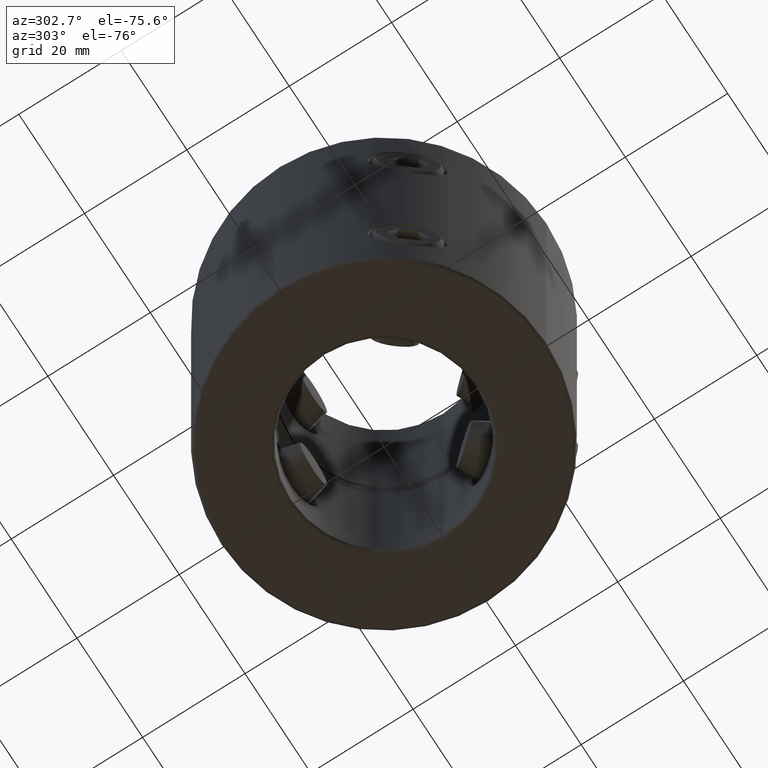
[diagram: clean part render]
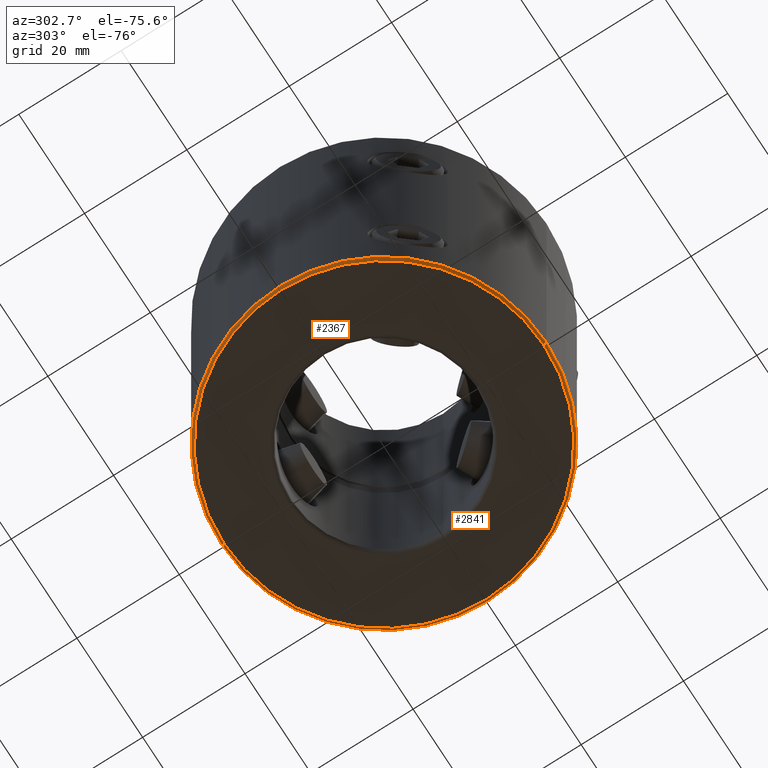
[diagram: same view with one multi-face feature highlighted, each face labeled with its STEP entity id]
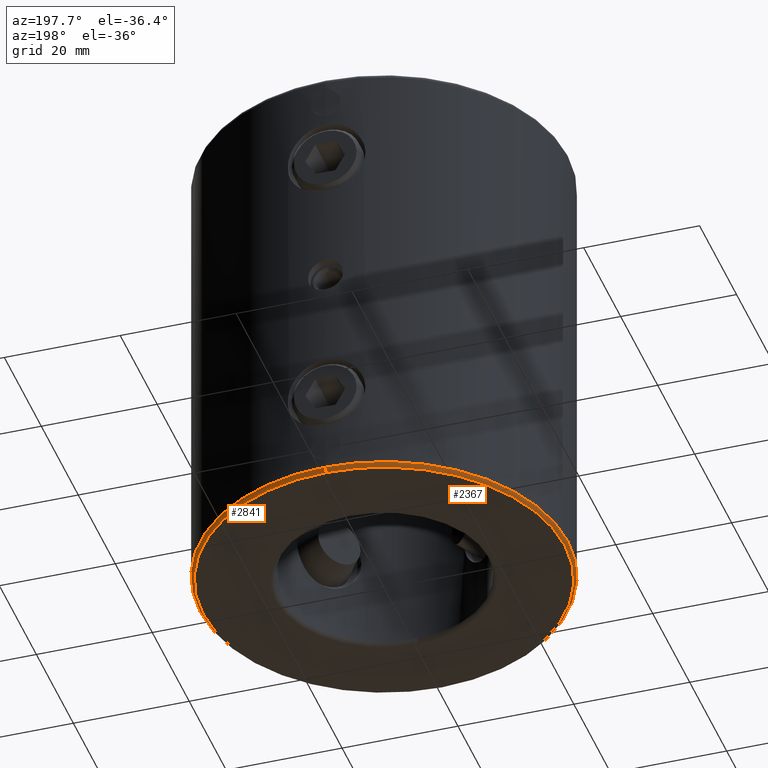
[diagram: same view with one multi-face feature highlighted, each face labeled with its STEP entity id]
A machine part, auxiliary view. The highlighted faces form ONE feature: a constant-radius fillet chain: 2 tangent blend faces with common blend radius 0.8 mm. The faces share edges in the B-rep.
A second angle (auxiliary view) of the same feature is appended — it is thin or edge-on in the first view.
Their STEP definitions:
[1] entity #2841 (Torus):
#1255=VERTEX_POINT('NONE',#3379);
#1347=EDGE_CURVE('NONE',#1909,#2827,#3482,.T.);
#1909=VERTEX_POINT('NONE',#4106);
#2119=EDGE_CURVE('NONE',#1255,#2615,#4348,.T.);
#2467=EDGE_CURVE('NONE',#2615,#1909,#4752,.T.);
#2615=VERTEX_POINT('NONE',#4920);
#2827=VERTEX_POINT('NONE',#5156);
#2841=ADVANCED_FACE('NONE',(#5172),#5173,.T.);
#3089=EDGE_CURVE('NONE',#1255,#2827,#5452,.T.);
#3379=CARTESIAN_POINT('',(2.61861252083052E-015,31.2283882181415,-80.0));
#3482=CIRCLE('',#6159,31.75);
#4106=CARTESIAN_POINT('',(3.88812517338605E-015,-31.75,-79.25));
#4348=CIRCLE('',#7658,31.2283882181415);
#4752=CIRCLE('',#8350,0.799999999999995);
#4920=CARTESIAN_POINT('',(-1.23757419744091E-015,-31.2283882181415,-80.0));
#5156=CARTESIAN_POINT('',(5.23722504166407E-015,31.75,-79.25));
#5172=FACE_OUTER_BOUND('',#9289,.T.);
#5173=TOROIDAL_SURFACE('',#9290,30.95,0.799999999999999);
#5452=CIRCLE('',#9850,0.799999999999995);
#6159=AXIS2_PLACEMENT_3D('',#10347,#10348,#10349);
#7658=AXIS2_PLACEMENT_3D('',#11395,#11396,#11397);
#8350=AXIS2_PLACEMENT_3D('',#11959,#11960,#11961);
#9289=EDGE_LOOP('',(#12427,#12428,#12429,#12430));
#9290=AXIS2_PLACEMENT_3D('',#12431,#12432,#12433);
#9850=AXIS2_PLACEMENT_3D('',#12753,#12754,#12755);
#10347=CARTESIAN_POINT('',(5.23722504166407E-015,0.0,-79.25));
#10348=DIRECTION('',(6.98296672221876E-015,-0.0,1.0));
#10349=DIRECTION('',(0.0,1.0,0.0));
#11395=CARTESIAN_POINT('',(4.56414044000959E-017,0.0,-80.0));
#11396=DIRECTION('',(-7.11034470860199E-015,0.0,-1.0));
#11397=DIRECTION('',(-1.0,0.0,7.11034470860199E-015));
#11959=CARTESIAN_POINT('',(1.44706837658382E-015,-30.95,-79.25));
#11960=DIRECTION('',(-1.0,1.22460635382238E-016,6.9829667222188E-015));
#11961=DIRECTION('',(6.9829667222188E-015,0.0,1.0));
#12427=ORIENTED_EDGE('',*,*,#2467,.F.);
#12428=ORIENTED_EDGE('',*,*,#2119,.F.);
#12429=ORIENTED_EDGE('',*,*,#3089,.T.);
#12430=ORIENTED_EDGE('',*,*,#1347,.F.);
#12431=CARTESIAN_POINT('',(5.23722504166407E-015,0.0,-79.25));
#12432=DIRECTION('',(6.98296672221877E-015,-0.0,1.0));
#12433=DIRECTION('',(0.0,1.0,0.0));
#12753=CARTESIAN_POINT('',(5.23722504166407E-015,30.95,-79.25));
#12754=DIRECTION('',(1.0,0.0,-6.9829667222188E-015));
#12755=DIRECTION('',(-6.9829667222188E-015,0.0,-1.0));
[2] entity #2367 (Torus):
#1255=VERTEX_POINT('NONE',#3379);
#1751=EDGE_CURVE('NONE',#2827,#1909,#3922,.T.);
#1909=VERTEX_POINT('NONE',#4106);
#2073=EDGE_CURVE('NONE',#2615,#1255,#4296,.T.);
#2367=ADVANCED_FACE('NONE',(#4636),#4637,.T.);
#2467=EDGE_CURVE('NONE',#2615,#1909,#4752,.T.);
#2615=VERTEX_POINT('NONE',#4920);
#2827=VERTEX_POINT('NONE',#5156);
#3089=EDGE_CURVE('NONE',#1255,#2827,#5452,.T.);
#3379=CARTESIAN_POINT('',(2.61861252083052E-015,31.2283882181415,-80.0));
#3922=CIRCLE('',#6919,31.75);
#4106=CARTESIAN_POINT('',(3.88812517338605E-015,-31.75,-79.25));
#4296=CIRCLE('',#7548,31.2283882181415);
#4636=FACE_OUTER_BOUND('',#8193,.T.);
#4637=TOROIDAL_SURFACE('',#8194,30.95,0.799999999999999);
#4752=CIRCLE('',#8350,0.799999999999995);
#4920=CARTESIAN_POINT('',(-1.23757419744091E-015,-31.2283882181415,-80.0));
#5156=CARTESIAN_POINT('',(5.23722504166407E-015,31.75,-79.25));
#5452=CIRCLE('',#9850,0.799999999999995);
#6919=AXIS2_PLACEMENT_3D('',#10803,#10804,#10805);
#7548=AXIS2_PLACEMENT_3D('',#11328,#11329,#11330);
#8193=EDGE_LOOP('',(#11795,#11796,#11797,#11798));
#8194=AXIS2_PLACEMENT_3D('',#11799,#11800,#11801);
#8350=AXIS2_PLACEMENT_3D('',#11959,#11960,#11961);
#9850=AXIS2_PLACEMENT_3D('',#12753,#12754,#12755);
#10803=CARTESIAN_POINT('',(5.23722504166407E-015,0.0,-79.25));
#10804=DIRECTION('',(6.98296672221876E-015,-0.0,1.0));
#10805=DIRECTION('',(0.0,1.0,0.0));
#11328=CARTESIAN_POINT('',(4.56414044000959E-017,0.0,-80.0));
#11329=DIRECTION('',(-7.11034470860199E-015,0.0,-1.0));
#11330=DIRECTION('',(-1.0,0.0,7.11034470860199E-015));
#11795=ORIENTED_EDGE('',*,*,#2073,.F.);
#11796=ORIENTED_EDGE('',*,*,#2467,.T.);
#11797=ORIENTED_EDGE('',*,*,#1751,.F.);
#11798=ORIENTED_EDGE('',*,*,#3089,.F.);
#11799=CARTESIAN_POINT('',(5.23722504166407E-015,0.0,-79.25));
#11800=DIRECTION('',(6.98296672221877E-015,-0.0,1.0));
#11801=DIRECTION('',(0.0,1.0,0.0));
#11959=CARTESIAN_POINT('',(1.44706837658382E-015,-30.95,-79.25));
#11960=DIRECTION('',(-1.0,1.22460635382238E-016,6.9829667222188E-015));
#11961=DIRECTION('',(6.9829667222188E-015,0.0,1.0));
#12753=CARTESIAN_POINT('',(5.23722504166407E-015,30.95,-79.25));
#12754=DIRECTION('',(1.0,0.0,-6.9829667222188E-015));
#12755=DIRECTION('',(-6.9829667222188E-015,0.0,-1.0));